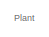
[diagram: root canvas - part 1/4, top left region]
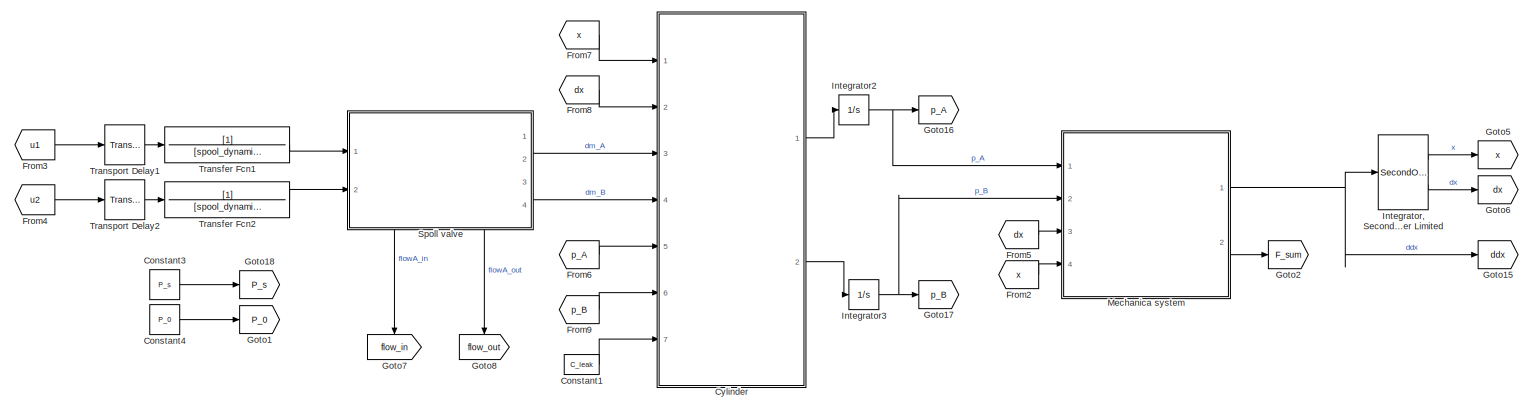
[diagram: root canvas - part 2/4, full width, top band]
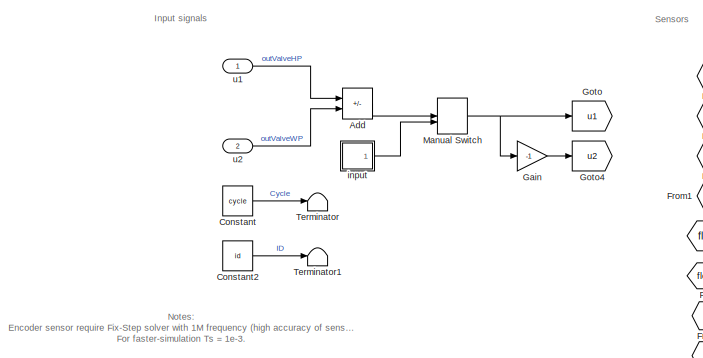
[diagram: root canvas - part 3/4, bottom left region]
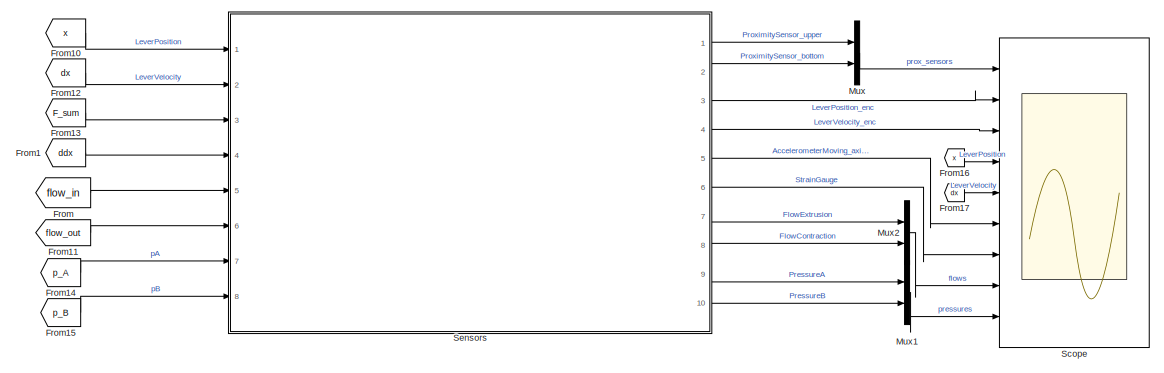
[diagram: root canvas - part 4/4, bottom right region]
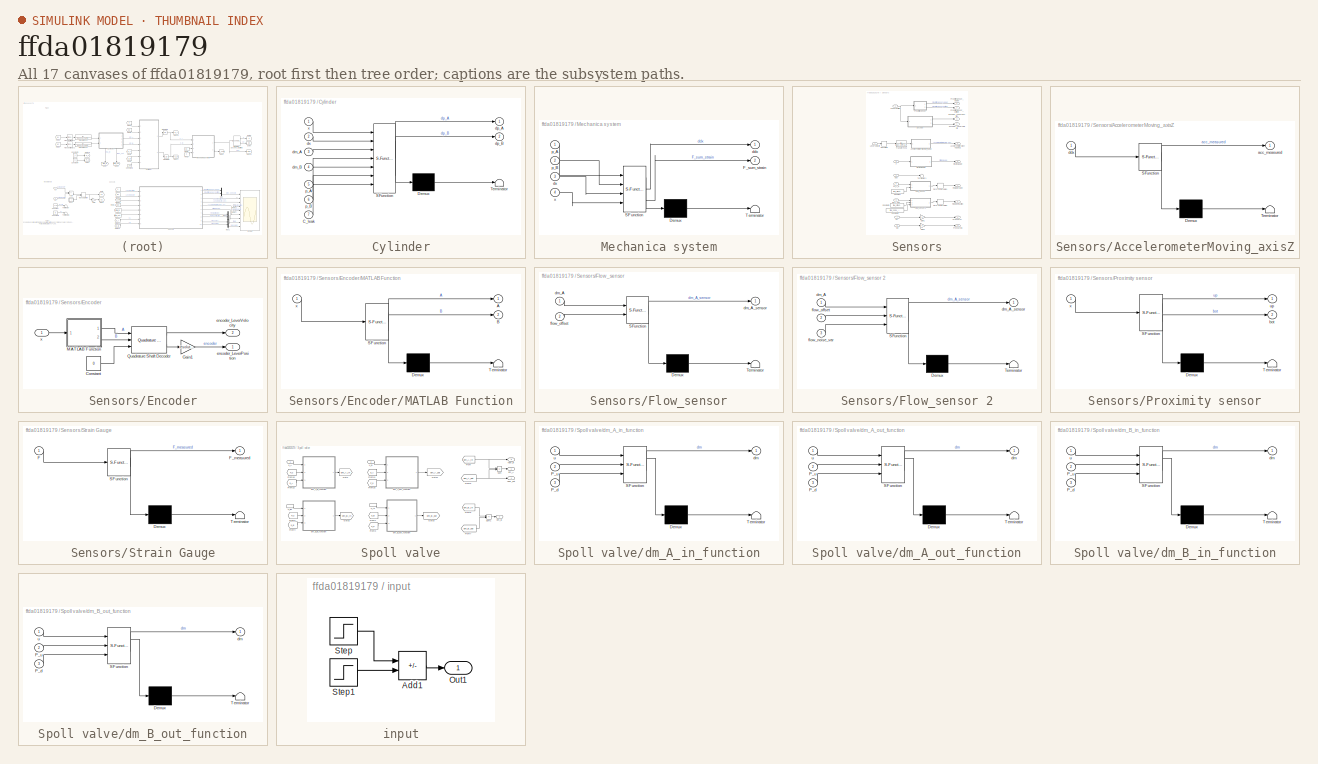
[diagram: thumbnail index - all 17 canvases of the model, root first then tree order]
MODEL slx_ffda01819179
KIND model
CONFIG AbsTol = auto
CONFIG EnableMultiTasking = off
CONFIG FixedStep = Ts
CONFIG MaxStep = auto
CONFIG MinStep = auto
CONFIG RelTol = 1e-3
CONFIG SampleTimeConstraint = Unconstrained
CONFIG SolverName = FixedStepAuto
CONFIG StartTime = 0.0
CONFIG StopTime = 10.0
BLOCK [Sum] Add
  IconShape = rectangular
  Inputs = -+
  Ports = [2, 1]
BLOCK [Constant] Constant
  OutDataTypeStr = double
  Value = cycle
BLOCK [Constant] Constant1
  Value = C_leak
BLOCK [Constant] Constant2
  OutDataTypeStr = double
  Value = id
BLOCK [Constant] Constant3
  Value = P_s
BLOCK [Constant] Constant4
  Value = P_0
BLOCK [SubSystem] Cylinder
  ErrorFcn = Stateflow.Translate.translate
  PermitHierarchicalResolution = ExplicitOnly
  Ports = [7, 2]
  RequestExecContextInheritance = off
  SFBlockType = MATLAB Function
  TreatAsAtomicUnit = on
BLOCK [Demux] Cylinder/ Demux 
  Outputs = 1
  Ports = [1, 1]
BLOCK [S-Function] Cylinder/ SFunction 
  EnableBusSupport = on
  FunctionName = sf_sfun
  Parameters = C_1,C_2,L,P_0,P_cr_ref,R,S_A,S_B,T,V_0A,V_0B,air_leak,gamma
  PortCounts = [7 3]
  Ports = [7, 3]
  SFcnIsStateOwnerBlock = off
  SFunctionDeploymentMode = off
  Tag = Stateflow S-Function 16
BLOCK [Terminator] Cylinder/ Terminator 
BLOCK [Inport] Cylinder/C_leak
  Port = 7
BLOCK [Inport] Cylinder/dm_A
  Port = 3
BLOCK [Inport] Cylinder/dm_B
  Port = 4
BLOCK [Outport] Cylinder/dp_A
BLOCK [Outport] Cylinder/dp_B
  Port = 2
BLOCK [Inport] Cylinder/dx
  Port = 2
BLOCK [Inport] Cylinder/p_A
  Port = 5
BLOCK [Inport] Cylinder/p_B
  Port = 6
BLOCK [Inport] Cylinder/x
BLOCK [From] From
  GotoTag = flow_in
  TagVisibility = global
BLOCK [From] From1
  GotoTag = ddx
  TagVisibility = global
BLOCK [From] From10
  GotoTag = x
  TagVisibility = global
BLOCK [From] From11
  GotoTag = flow_out
  TagVisibility = global
BLOCK [From] From12
  GotoTag = dx
  TagVisibility = global
BLOCK [From] From13
  GotoTag = F_sum
  TagVisibility = global
BLOCK [From] From14
  GotoTag = p_A
  TagVisibility = global
BLOCK [From] From15
  GotoTag = p_B
  TagVisibility = global
BLOCK [From] From16
  GotoTag = x
  TagVisibility = global
BLOCK [From] From17
  GotoTag = dx
  TagVisibility = global
BLOCK [From] From2
  GotoTag = x
  TagVisibility = global
BLOCK [From] From3
  GotoTag = u1
BLOCK [From] From4
  GotoTag = u2
BLOCK [From] From5
  GotoTag = dx
  TagVisibility = global
BLOCK [From] From6
  GotoTag = p_A
  TagVisibility = global
BLOCK [From] From7
  GotoTag = x
  TagVisibility = global
BLOCK [From] From8
  GotoTag = dx
  TagVisibility = global
BLOCK [From] From9
  GotoTag = p_B
  TagVisibility = global
BLOCK [Gain] Gain
  Gain = -1
BLOCK [Goto] Goto
  GotoTag = u1
BLOCK [Goto] Goto1
  GotoTag = P_0
  TagVisibility = global
BLOCK [Goto] Goto15
  GotoTag = ddx
  TagVisibility = global
BLOCK [Goto] Goto16
  GotoTag = p_A
  TagVisibility = global
BLOCK [Goto] Goto17
  GotoTag = p_B
  TagVisibility = global
BLOCK [Goto] Goto18
  GotoTag = P_s
  TagVisibility = global
BLOCK [Goto] Goto2
  GotoTag = F_sum
  TagVisibility = global
BLOCK [Goto] Goto4
  GotoTag = u2
BLOCK [Goto] Goto5
  GotoTag = x
  TagVisibility = global
BLOCK [Goto] Goto6
  GotoTag = dx
  TagVisibility = global
BLOCK [Goto] Goto7
  GotoTag = flow_in
  NameLocation = left
  TagVisibility = global
BLOCK [Goto] Goto8
  GotoTag = flow_out
  NameLocation = left
  TagVisibility = global
BLOCK [SecondOrderIntegrator] Integrator, Second-Order Limited
  ICX = x0
  LowerLimitX = gn
  Ports = [1, 2]
  UpperLimitX = gp
BLOCK [Integrator] Integrator2
  InitialCondition = p_A0
  Ports = [1, 1]
BLOCK [Integrator] Integrator3
  InitialCondition = p_B0
  Ports = [1, 1]
BLOCK [ManualSwitch] Manual Switch
  CurrentSetting = 0
BLOCK [SubSystem] Mechanica system
  ErrorFcn = Stateflow.Translate.translate
  PermitHierarchicalResolution = ExplicitOnly
  Ports = [4, 2]
  RequestExecContextInheritance = off
  SFBlockType = MATLAB Function
  TreatAsAtomicUnit = on
BLOCK [Demux] Mechanica system/ Demux 
  Outputs = 1
  Ports = [1, 1]
BLOCK [S-Function] Mechanica system/ SFunction 
  EnableBusSupport = on
  FunctionName = sf_sfun
  Parameters = B_hs,F_c,F_df,F_sf,K_hs,LargeDamper_bottom,LargeDamper_upper,M,M_L,P_0,S_0,S_A,S_B,SmallDamper_bottom,SmallDamper_upper,b_large_bot,b_large_up,b_small_bot,b_small_up,bot_damp_start,g,gn,gp,k_small_bot,k_small_up,up_damp_start
  PortCounts = [4 3]
  Ports = [4, 3]
  SFcnIsStateOwnerBlock = off
  SFunctionDeploymentMode = off
  Tag = Stateflow S-Function 15
BLOCK [Terminator] Mechanica system/ Terminator 
BLOCK [Outport] Mechanica system/F_sum_strain
  Port = 2
BLOCK [Outport] Mechanica system/ddx
BLOCK [Inport] Mechanica system/dx
  Port = 3
BLOCK [Inport] Mechanica system/p_A
BLOCK [Inport] Mechanica system/p_B
  Port = 2
BLOCK [Inport] Mechanica system/x
  Port = 4
BLOCK [Mux] Mux
  DisplayOption = bar
  Inputs = 2
  Ports = [2, 1]
BLOCK [Mux] Mux1
  DisplayOption = bar
  Inputs = 2
  Ports = [2, 1]
BLOCK [Mux] Mux2
  DisplayOption = bar
  Inputs = 2
  Ports = [2, 1]
BLOCK [Scope] Scope
  Floating = off
  NumInputPorts = 9
  Ports = [9]
  ScopeSpecificationString = Simulink.scopes.TimeScopeBlockCfg('CurrentConfiguration', extmgr.ConfigurationSet(extmgr.Configuration('Core','General UI',true),extmgr.Configuration('Core','Source UI',true),extmgr.Configuration('Sources','WiredSimulink',true,'DataLoggingVariableName','ScopeData1'),extmgr.Configuration('Visuals','Time Domain',true,'SerializedDisplays',{struct('MinYLimReal','-0.125','MaxYLimReal','1.125','YLabelRe...<+6979ch>
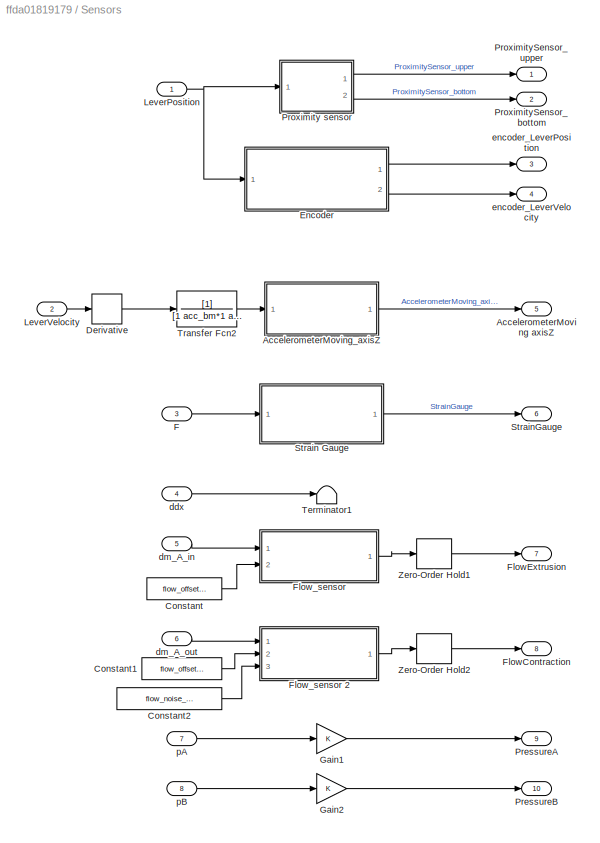
BLOCK [SubSystem] Sensors
  Ports = [8, 10]
  RequestExecContextInheritance = off
BLOCK [Outport] Sensors/AccelerometerMoving axisZ
  Port = 5
BLOCK [SubSystem] Sensors/AccelerometerMoving_axisZ
  ErrorFcn = Stateflow.Translate.translate
  PermitHierarchicalResolution = ExplicitOnly
  Ports = [1, 1]
  RequestExecContextInheritance = off
  SFBlockType = MATLAB Function
  TreatAsAtomicUnit = on
BLOCK [Demux] Sensors/AccelerometerMoving_axisZ/ Demux 
  Outputs = 1
  Ports = [1, 1]
BLOCK [S-Function] Sensors/AccelerometerMoving_axisZ/ SFunction 
  EnableBusSupport = on
  FunctionName = sf_sfun
  Parameters = acc_C,acc_enable,acc_noise_var
  PortCounts = [1 2]
  Ports = [1, 2]
  SFcnIsStateOwnerBlock = off
  SFunctionDeploymentMode = off
  Tag = Stateflow S-Function 1
BLOCK [Terminator] Sensors/AccelerometerMoving_axisZ/ Terminator 
BLOCK [Outport] Sensors/AccelerometerMoving_axisZ/acc_measured
BLOCK [Inport] Sensors/AccelerometerMoving_axisZ/ddx
BLOCK [Constant] Sensors/Constant
  Value = flow_offset_ex
BLOCK [Constant] Sensors/Constant1
  Value = flow_offset_con
BLOCK [Constant] Sensors/Constant2
  Value = flow_noise_var_con
BLOCK [Derivative] Sensors/Derivative
BLOCK [SubSystem] Sensors/Encoder
  Ports = [1, 2]
  RequestExecContextInheritance = off
BLOCK [Constant] Sensors/Encoder/Constant
  Value = 0
BLOCK [Gain] Sensors/Encoder/Gain1
  Gain = resolution*2
BLOCK [SubSystem] Sensors/Encoder/MATLAB Function
  ErrorFcn = Stateflow.Translate.translate
  PermitHierarchicalResolution = ExplicitOnly
  Ports = [1, 2]
  RequestExecContextInheritance = off
  SFBlockType = MATLAB Function
  TreatAsAtomicUnit = on
BLOCK [Demux] Sensors/Encoder/MATLAB Function/ Demux 
  Outputs = 1
  Ports = [1, 1]
BLOCK [S-Function] Sensors/Encoder/MATLAB Function/ SFunction 
  EnableBusSupport = on
  FunctionName = sf_sfun
  Parameters = counter_bits,resolution,threshold
  PortCounts = [1 3]
  Ports = [1, 3]
  SFcnIsStateOwnerBlock = off
  SFunctionDeploymentMode = off
  Tag = Stateflow S-Function 6
BLOCK [Terminator] Sensors/Encoder/MATLAB Function/ Terminator 
BLOCK [Outport] Sensors/Encoder/MATLAB Function/A
BLOCK [Outport] Sensors/Encoder/MATLAB Function/B
  Port = 2
BLOCK [Inport] Sensors/Encoder/MATLAB Function/x
BLOCK [Reference] Sensors/Encoder/Quadrature Shaft Decoder  REF=eeQuadratureDecoder/Quadrature Shaft
Decoder
  Ports = [3, 2]
  SourceBlock = eeQuadratureDecoder/Quadrature Shaft\nDecoder
  SourceProductBaseCode = PS
  SourceType = Quadrature Shaft Decoder
BLOCK [Outport] Sensors/Encoder/encoder_LeverPosition
BLOCK [Outport] Sensors/Encoder/encoder_LeverVelocity
  Port = 2
BLOCK [Inport] Sensors/Encoder/x
BLOCK [Inport] Sensors/F
  Port = 3
BLOCK [Outport] Sensors/FlowContraction
  Port = 8
BLOCK [Outport] Sensors/FlowExtrusion
  Port = 7
BLOCK [SubSystem] Sensors/Flow_sensor
  ErrorFcn = Stateflow.Translate.translate
  PermitHierarchicalResolution = ExplicitOnly
  Ports = [2, 1]
  RequestExecContextInheritance = off
  SFBlockType = MATLAB Function
  TreatAsAtomicUnit = on
BLOCK [SubSystem] Sensors/Flow_sensor 2
  ErrorFcn = Stateflow.Translate.translate
  PermitHierarchicalResolution = ExplicitOnly
  Ports = [3, 1]
  RequestExecContextInheritance = off
  SFBlockType = MATLAB Function
  TreatAsAtomicUnit = on
BLOCK [Demux] Sensors/Flow_sensor 2/ Demux 
  Outputs = 1
  Ports = [1, 1]
BLOCK [S-Function] Sensors/Flow_sensor 2/ SFunction 
  EnableBusSupport = on
  FunctionName = sf_sfun
  Parameters = flow_C,flow_C_ratio
  PortCounts = [3 2]
  Ports = [3, 2]
  SFcnIsStateOwnerBlock = off
  SFunctionDeploymentMode = off
  Tag = Stateflow S-Function 4
BLOCK [Terminator] Sensors/Flow_sensor 2/ Terminator 
BLOCK [Inport] Sensors/Flow_sensor 2/dm_A
BLOCK [Outport] Sensors/Flow_sensor 2/dm_A_sensor
BLOCK [Inport] Sensors/Flow_sensor 2/flow_noise_var
  Port = 3
BLOCK [Inport] Sensors/Flow_sensor 2/flow_offset
  Port = 2
BLOCK [Demux] Sensors/Flow_sensor/ Demux 
  Outputs = 1
  Ports = [1, 1]
BLOCK [S-Function] Sensors/Flow_sensor/ SFunction 
  EnableBusSupport = on
  FunctionName = sf_sfun
  Parameters = flow_C,flow_C_ratio,flow_noise_var
  PortCounts = [2 2]
  Ports = [2, 2]
  SFcnIsStateOwnerBlock = off
  SFunctionDeploymentMode = off
  Tag = Stateflow S-Function 3
BLOCK [Terminator] Sensors/Flow_sensor/ Terminator 
BLOCK [Inport] Sensors/Flow_sensor/dm_A
BLOCK [Outport] Sensors/Flow_sensor/dm_A_sensor
BLOCK [Inport] Sensors/Flow_sensor/flow_offset
  Port = 2
BLOCK [Gain] Sensors/Gain1
BLOCK [Gain] Sensors/Gain2
BLOCK [Inport] Sensors/LeverPosition
BLOCK [Inport] Sensors/LeverVelocity
  Port = 2
BLOCK [Outport] Sensors/PressureA
  Port = 9
BLOCK [Outport] Sensors/PressureB
  Port = 10
BLOCK [SubSystem] Sensors/Proximity sensor
  ErrorFcn = Stateflow.Translate.translate
  PermitHierarchicalResolution = ExplicitOnly
  Ports = [1, 2]
  RequestExecContextInheritance = off
  SFBlockType = MATLAB Function
  TreatAsAtomicUnit = on
BLOCK [Demux] Sensors/Proximity sensor/ Demux 
  Outputs = 1
  Ports = [1, 1]
BLOCK [S-Function] Sensors/Proximity sensor/ SFunction 
  EnableBusSupport = on
  FunctionName = sf_sfun
  Parameters = prox_bot_band,prox_up_band
  PortCounts = [1 3]
  Ports = [1, 3]
  SFcnIsStateOwnerBlock = off
  SFunctionDeploymentMode = off
  Tag = Stateflow S-Function 2
BLOCK [Terminator] Sensors/Proximity sensor/ Terminator 
BLOCK [Outport] Sensors/Proximity sensor/bot
  Port = 2
BLOCK [Outport] Sensors/Proximity sensor/up
BLOCK [Inport] Sensors/Proximity sensor/x
BLOCK [Outport] Sensors/ProximitySensor_bottom
  Port = 2
BLOCK [Outport] Sensors/ProximitySensor_upper
BLOCK [SubSystem] Sensors/Strain Gauge
  ErrorFcn = Stateflow.Translate.translate
  PermitHierarchicalResolution = ExplicitOnly
  Ports = [1, 1]
  RequestExecContextInheritance = off
  SFBlockType = MATLAB Function
  TreatAsAtomicUnit = on
BLOCK [Demux] Sensors/Strain Gauge/ Demux 
  Outputs = 1
  Ports = [1, 1]
BLOCK [S-Function] Sensors/Strain Gauge/ SFunction 
  EnableBusSupport = on
  FunctionName = sf_sfun
  Parameters = sg_C,sg_enable,sg_noise_var
  PortCounts = [1 2]
  Ports = [1, 2]
  SFcnIsStateOwnerBlock = off
  SFunctionDeploymentMode = off
  Tag = Stateflow S-Function 5
BLOCK [Terminator] Sensors/Strain Gauge/ Terminator 
BLOCK [Inport] Sensors/Strain Gauge/F
BLOCK [Outport] Sensors/Strain Gauge/F_measured
BLOCK [Outport] Sensors/StrainGauge
  Port = 6
BLOCK [Terminator] Sensors/Terminator1
BLOCK [TransferFcn] Sensors/Transfer Fcn2
  Denominator = [1 acc_bm*1 acc_km*1]
BLOCK [ZeroOrderHold] Sensors/Zero-Order Hold1
  SampleTime = Ts
BLOCK [ZeroOrderHold] Sensors/Zero-Order Hold2
  SampleTime = Ts
BLOCK [Inport] Sensors/ddx
  Port = 4
BLOCK [Inport] Sensors/dm_A_in
  Port = 5
BLOCK [Inport] Sensors/dm_A_out
  Port = 6
BLOCK [Outport] Sensors/encoder_LeverPosition
  Port = 3
BLOCK [Outport] Sensors/encoder_LeverVelocity
  Port = 4
BLOCK [Inport] Sensors/pA
  Port = 7
BLOCK [Inport] Sensors/pB
  Port = 8
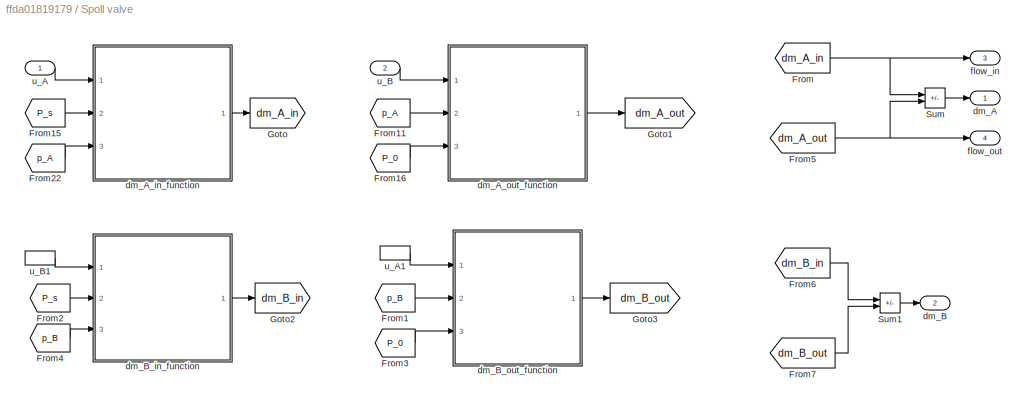
BLOCK [SubSystem] Spoll valve
  PortSchema = {"entries":[{"content":{"sides":[{"content":{"connectorIds":["In1","In2"]},"type":"ConnectorPlacement.EquallySpacedRectSide","uuid":"f49fadee-fa9e-4c00-be17-3013d1757a7f"},{"content":{"connectorIds":["Out1","Out2"],"side":"RIGHT"},"type":"ConnectorPlacement.EquallySpacedRectSide","uuid":"640b0073-0df7-45c7-9e72-cb244187d5a1"},{"content":{"connectorIds":[],"side":"TOP"},"type":"ConnectorPlacement.E...<+410ch>
  Ports = [2, 4]
  RequestExecContextInheritance = off
BLOCK [From] Spoll valve/From
  GotoTag = dm_A_in
BLOCK [From] Spoll valve/From1
  GotoTag = p_B
  TagVisibility = global
BLOCK [From] Spoll valve/From11
  GotoTag = p_A
  TagVisibility = global
BLOCK [From] Spoll valve/From15
  GotoTag = P_s
  TagVisibility = global
BLOCK [From] Spoll valve/From16
  GotoTag = P_0
  TagVisibility = global
BLOCK [From] Spoll valve/From2
  GotoTag = P_s
  TagVisibility = global
BLOCK [From] Spoll valve/From22
  GotoTag = p_A
  TagVisibility = global
BLOCK [From] Spoll valve/From3
  GotoTag = P_0
  TagVisibility = global
BLOCK [From] Spoll valve/From4
  GotoTag = p_B
  TagVisibility = global
BLOCK [From] Spoll valve/From5
  GotoTag = dm_A_out
BLOCK [From] Spoll valve/From6
  GotoTag = dm_B_in
BLOCK [From] Spoll valve/From7
  GotoTag = dm_B_out
BLOCK [Goto] Spoll valve/Goto
  GotoTag = dm_A_in
BLOCK [Goto] Spoll valve/Goto1
  GotoTag = dm_A_out
BLOCK [Goto] Spoll valve/Goto2
  GotoTag = dm_B_in
BLOCK [Goto] Spoll valve/Goto3
  GotoTag = dm_B_out
BLOCK [Sum] Spoll valve/Sum
  IconShape = rectangular
  Inputs = +-
  Ports = [2, 1]
BLOCK [Sum] Spoll valve/Sum1
  IconShape = rectangular
  Inputs = +-
  Ports = [2, 1]
BLOCK [Outport] Spoll valve/dm_A
BLOCK [SubSystem] Spoll valve/dm_A_in_function
  ErrorFcn = Stateflow.Translate.translate
  PermitHierarchicalResolution = ExplicitOnly
  Ports = [3, 1]
  RequestExecContextInheritance = off
  SFBlockType = MATLAB Function
  TreatAsAtomicUnit = on
BLOCK [Demux] Spoll valve/dm_A_in_function/ Demux 
  Outputs = 1
  Ports = [1, 1]
BLOCK [S-Function] Spoll valve/dm_A_in_function/ SFunction 
  EnableBusSupport = on
  FunctionName = sf_sfun
  Parameters = C_1,C_2,C_A_in,P_cr,T,gamma
  PortCounts = [3 2]
  Ports = [3, 2]
  SFcnIsStateOwnerBlock = off
  SFunctionDeploymentMode = off
  Tag = Stateflow S-Function 17
BLOCK [Terminator] Spoll valve/dm_A_in_function/ Terminator 
BLOCK [Inport] Spoll valve/dm_A_in_function/P_d
  Port = 3
BLOCK [Inport] Spoll valve/dm_A_in_function/P_u
  Port = 2
BLOCK [Outport] Spoll valve/dm_A_in_function/dm
BLOCK [Inport] Spoll valve/dm_A_in_function/u
BLOCK [SubSystem] Spoll valve/dm_A_out_function
  ErrorFcn = Stateflow.Translate.translate
  PermitHierarchicalResolution = ExplicitOnly
  Ports = [3, 1]
  RequestExecContextInheritance = off
  SFBlockType = MATLAB Function
  TreatAsAtomicUnit = on
BLOCK [Demux] Spoll valve/dm_A_out_function/ Demux 
  Outputs = 1
  Ports = [1, 1]
BLOCK [S-Function] Spoll valve/dm_A_out_function/ SFunction 
  EnableBusSupport = on
  FunctionName = sf_sfun
  Parameters = C_1,C_2,C_A_out,P_cr,T,gamma
  PortCounts = [3 2]
  Ports = [3, 2]
  SFcnIsStateOwnerBlock = off
  SFunctionDeploymentMode = off
  Tag = Stateflow S-Function 18
BLOCK [Terminator] Spoll valve/dm_A_out_function/ Terminator 
BLOCK [Inport] Spoll valve/dm_A_out_function/P_d
  Port = 3
BLOCK [Inport] Spoll valve/dm_A_out_function/P_u
  Port = 2
BLOCK [Outport] Spoll valve/dm_A_out_function/dm
BLOCK [Inport] Spoll valve/dm_A_out_function/u
BLOCK [Outport] Spoll valve/dm_B
  Port = 2
BLOCK [SubSystem] Spoll valve/dm_B_in_function
  ErrorFcn = Stateflow.Translate.translate
  PermitHierarchicalResolution = ExplicitOnly
  Ports = [3, 1]
  RequestExecContextInheritance = off
  SFBlockType = MATLAB Function
  TreatAsAtomicUnit = on
BLOCK [Demux] Spoll valve/dm_B_in_function/ Demux 
  Outputs = 1
  Ports = [1, 1]
BLOCK [S-Function] Spoll valve/dm_B_in_function/ SFunction 
  EnableBusSupport = on
  FunctionName = sf_sfun
  Parameters = C_1,C_2,C_B_in,P_cr,T,gamma
  PortCounts = [3 2]
  Ports = [3, 2]
  SFcnIsStateOwnerBlock = off
  SFunctionDeploymentMode = off
  Tag = Stateflow S-Function 19
BLOCK [Terminator] Spoll valve/dm_B_in_function/ Terminator 
BLOCK [Inport] Spoll valve/dm_B_in_function/P_d
  Port = 3
BLOCK [Inport] Spoll valve/dm_B_in_function/P_u
  Port = 2
BLOCK [Outport] Spoll valve/dm_B_in_function/dm
BLOCK [Inport] Spoll valve/dm_B_in_function/u
BLOCK [SubSystem] Spoll valve/dm_B_out_function
  ErrorFcn = Stateflow.Translate.translate
  PermitHierarchicalResolution = ExplicitOnly
  Ports = [3, 1]
  RequestExecContextInheritance = off
  SFBlockType = MATLAB Function
  TreatAsAtomicUnit = on
BLOCK [Demux] Spoll valve/dm_B_out_function/ Demux 
  Outputs = 1
  Ports = [1, 1]
BLOCK [S-Function] Spoll valve/dm_B_out_function/ SFunction 
  EnableBusSupport = on
  FunctionName = sf_sfun
  Parameters = C_1,C_2,C_B_out,P_cr,T,gamma
  PortCounts = [3 2]
  Ports = [3, 2]
  SFcnIsStateOwnerBlock = off
  SFunctionDeploymentMode = off
  Tag = Stateflow S-Function 20
BLOCK [Terminator] Spoll valve/dm_B_out_function/ Terminator 
BLOCK [Inport] Spoll valve/dm_B_out_function/P_d
  Port = 3
BLOCK [Inport] Spoll valve/dm_B_out_function/P_u
  Port = 2
BLOCK [Outport] Spoll valve/dm_B_out_function/dm
BLOCK [Inport] Spoll valve/dm_B_out_function/u
BLOCK [Outport] Spoll valve/flow_in
  Port = 3
BLOCK [Outport] Spoll valve/flow_out
  Port = 4
BLOCK [Inport] Spoll valve/u_A
BLOCK [InportShadow] Spoll valve/u_A1
BLOCK [Inport] Spoll valve/u_B
  Port = 2
BLOCK [InportShadow] Spoll valve/u_B1
  Port = 2
BLOCK [Terminator] Terminator
BLOCK [Terminator] Terminator1
BLOCK [TransferFcn] Transfer Fcn1
  Denominator = [spool_dynamic 1]
BLOCK [TransferFcn] Transfer Fcn2
  Denominator = [spool_dynamic 1]
BLOCK [TransportDelay] Transport Delay1
  DelayTime = spool_valve_time_delay
  Ports = [1, 1]
BLOCK [TransportDelay] Transport Delay2
  DelayTime = spool_valve_time_delay
  Ports = [1, 1]
BLOCK [SubSystem] input
  Ports = [0, 1]
  RequestExecContextInheritance = off
BLOCK [Sum] input/Add1
  IconShape = rectangular
  Inputs = +-
  Ports = [2, 1]
BLOCK [Outport] input/Out1
BLOCK [Step] input/Step
  Before = -1
  SampleTime = 0
BLOCK [Step] input/Step1
  After = 2
  SampleTime = 0
  Time = 6
BLOCK [Inport] u1
BLOCK [Inport] u2
  Port = 2
ANNOTATION (root): Notes: Encoder sensor require Fix-Step solver with 1M frequency (high accuracy of sensor). For faster-simulation Ts = 1e-3.
ANNOTATION (root): Input signals
ANNOTATION (root): Plant
ANNOTATION (root): Sensors
LINE Add:1 -> Manual Switch:1
LINE Constant1:1 -> Cylinder:7
LINE Constant2:1 -> Terminator1:1
LINE Constant3:1 -> Goto18:1
LINE Constant4:1 -> Goto1:1
LINE Constant:1 -> Terminator:1
LINE Cylinder:1 -> Integrator2:1
LINE Cylinder:2 -> Integrator3:1
LINE From10:1 -> Sensors:1
LINE From11:1 -> Sensors:6
LINE From12:1 -> Sensors:2
LINE From13:1 -> Sensors:3
LINE From14:1 -> Sensors:7
LINE From15:1 -> Sensors:8
LINE From16:1 -> Scope:4
LINE From17:1 -> Scope:5
LINE From1:1 -> Sensors:4
LINE From2:1 -> Mechanica system:4
LINE From3:1 -> Transport Delay1:1
LINE From4:1 -> Transport Delay2:1
LINE From5:1 -> Mechanica system:3
LINE From6:1 -> Cylinder:5
LINE From7:1 -> Cylinder:1
LINE From8:1 -> Cylinder:2
LINE From9:1 -> Cylinder:6
LINE From:1 -> Sensors:5
LINE Gain:1 -> Goto4:1
LINE Integrator, Second-Order Limited:1 -> Goto5:1
LINE Integrator, Second-Order Limited:2 -> Goto6:1
NET Integrator2:1 -> Goto16:1, Mechanica system:1
NET Integrator3:1 -> Goto17:1, Mechanica system:2
NET Manual Switch:1 -> Gain:1, Goto:1
NET Mechanica system:1 -> Goto15:1, Integrator, Second-Order Limited:1
LINE Mechanica system:2 -> Goto2:1
LINE Mux1:1 -> Scope:9
LINE Mux2:1 -> Scope:8
LINE Mux:1 -> Scope:1
LINE Sensors/AccelerometerMoving_axisZ:1 -> Sensors/AccelerometerMoving axisZ:1
LINE Sensors/Constant1:1 -> Sensors/Flow_sensor 2:2
LINE Sensors/Constant2:1 -> Sensors/Flow_sensor 2:3
LINE Sensors/Constant:1 -> Sensors/Flow_sensor:2
LINE Sensors/Derivative:1 -> Sensors/Transfer Fcn2:1
LINE Sensors/Encoder/Constant:1 -> Sensors/Encoder/Quadrature Shaft Decoder:3
LINE Sensors/Encoder/Gain1:1 -> Sensors/Encoder/encoder_LeverPosition:1
LINE Sensors/Encoder/MATLAB Function:1 -> Sensors/Encoder/Quadrature Shaft Decoder:1
LINE Sensors/Encoder/MATLAB Function:2 -> Sensors/Encoder/Quadrature Shaft Decoder:2
LINE Sensors/Encoder/Quadrature Shaft Decoder:1 -> Sensors/Encoder/encoder_LeverVelocity:1
LINE Sensors/Encoder/Quadrature Shaft Decoder:2 -> Sensors/Encoder/Gain1:1
LINE Sensors/Encoder/x:1 -> Sensors/Encoder/MATLAB Function:1
LINE Sensors/Encoder:1 -> Sensors/encoder_LeverPosition:1
LINE Sensors/Encoder:2 -> Sensors/encoder_LeverVelocity:1
LINE Sensors/F:1 -> Sensors/Strain Gauge:1
LINE Sensors/Flow_sensor 2:1 -> Sensors/Zero-Order Hold2:1
LINE Sensors/Flow_sensor:1 -> Sensors/Zero-Order Hold1:1
LINE Sensors/Gain1:1 -> Sensors/PressureA:1
LINE Sensors/Gain2:1 -> Sensors/PressureB:1
NET Sensors/LeverPosition:1 -> Sensors/Encoder:1, Sensors/Proximity sensor:1
LINE Sensors/LeverVelocity:1 -> Sensors/Derivative:1
LINE Sensors/Proximity sensor:1 -> Sensors/ProximitySensor_upper:1
LINE Sensors/Proximity sensor:2 -> Sensors/ProximitySensor_bottom:1
LINE Sensors/Strain Gauge:1 -> Sensors/StrainGauge:1
LINE Sensors/Transfer Fcn2:1 -> Sensors/AccelerometerMoving_axisZ:1
LINE Sensors/Zero-Order Hold1:1 -> Sensors/FlowExtrusion:1
LINE Sensors/Zero-Order Hold2:1 -> Sensors/FlowContraction:1
LINE Sensors/ddx:1 -> Sensors/Terminator1:1
LINE Sensors/dm_A_in:1 -> Sensors/Flow_sensor:1
LINE Sensors/dm_A_out:1 -> Sensors/Flow_sensor 2:1
LINE Sensors/pA:1 -> Sensors/Gain1:1
LINE Sensors/pB:1 -> Sensors/Gain2:1
LINE Sensors:1 -> Mux:1
LINE Sensors:10 -> Mux1:2
LINE Sensors:2 -> Mux:2
LINE Sensors:3 -> Scope:2
LINE Sensors:4 -> Scope:3
LINE Sensors:5 -> Scope:6
LINE Sensors:6 -> Scope:7
LINE Sensors:7 -> Mux2:1
LINE Sensors:8 -> Mux2:2
LINE Sensors:9 -> Mux1:1
LINE Spoll valve/From11:1 -> Spoll valve/dm_A_out_function:2
LINE Spoll valve/From15:1 -> Spoll valve/dm_A_in_function:2
LINE Spoll valve/From16:1 -> Spoll valve/dm_A_out_function:3
LINE Spoll valve/From1:1 -> Spoll valve/dm_B_out_function:2
LINE Spoll valve/From22:1 -> Spoll valve/dm_A_in_function:3
LINE Spoll valve/From2:1 -> Spoll valve/dm_B_in_function:2
LINE Spoll valve/From3:1 -> Spoll valve/dm_B_out_function:3
LINE Spoll valve/From4:1 -> Spoll valve/dm_B_in_function:3
NET Spoll valve/From5:1 -> Spoll valve/Sum:2, Spoll valve/flow_out:1
LINE Spoll valve/From6:1 -> Spoll valve/Sum1:1
LINE Spoll valve/From7:1 -> Spoll valve/Sum1:2
NET Spoll valve/From:1 -> Spoll valve/Sum:1, Spoll valve/flow_in:1
LINE Spoll valve/Sum1:1 -> Spoll valve/dm_B:1
LINE Spoll valve/Sum:1 -> Spoll valve/dm_A:1
LINE Spoll valve/dm_A_in_function:1 -> Spoll valve/Goto:1
LINE Spoll valve/dm_A_out_function:1 -> Spoll valve/Goto1:1
LINE Spoll valve/dm_B_in_function:1 -> Spoll valve/Goto2:1
LINE Spoll valve/dm_B_out_function:1 -> Spoll valve/Goto3:1
LINE Spoll valve/u_A1:1 -> Spoll valve/dm_B_out_function:1
LINE Spoll valve/u_A:1 -> Spoll valve/dm_A_in_function:1
LINE Spoll valve/u_B1:1 -> Spoll valve/dm_B_in_function:1
LINE Spoll valve/u_B:1 -> Spoll valve/dm_A_out_function:1
LINE Spoll valve:1 -> Cylinder:3
LINE Spoll valve:2 -> Cylinder:4
LINE Spoll valve:3 -> Goto7:1
LINE Spoll valve:4 -> Goto8:1
LINE Transfer Fcn1:1 -> Spoll valve:1
LINE Transfer Fcn2:1 -> Spoll valve:2
LINE Transport Delay1:1 -> Transfer Fcn1:1
LINE Transport Delay2:1 -> Transfer Fcn2:1
LINE input/Add1:1 -> input/Out1:1
LINE input/Step1:1 -> input/Add1:2
LINE input/Step:1 -> input/Add1:1
LINE input:1 -> Manual Switch:2
LINE u1:1 -> Add:1
LINE u2:1 -> Add:2
note: NET lines group one-source signal fan-out (src -> all destinations, sorted); 1:1 wires keep LINE
CHART Mechanica system states=1 transitions=1
  STATE_LABEL 'eML_blk_kernel()'
  STATE_LABEL 'SCRIPT:\nfunction [ddx, F_sum_strain] = fcn(p_A,p_B,dx,x,S_A,S_B,M,M_L,P_0,S_0,g, ...\n    up_damp_start,bot_damp_start,b_small_up,k_small_up,b_small_bot,k_small_bot,SmallDamper_bottom,SmallDamper_upper, ...\n    K_hs,B_hs,gp,gn,b_large_bot, b_large_up, LargeDamper_bottom, LargeDamper_upper, F_sf, F_df, F_c)\n\n\n\n% % Hard Stop\nif 1\nup_force = K_hs*(x-gp) + B_hs*dx*ge(dx,0);\nbot_force = K_hs*(x-gn) + B_...<+1343ch>'
CHART Cylinder states=1 transitions=1
  STATE_LABEL 'eML_blk_kernel()'
  STATE_LABEL 'SCRIPT:\nfunction [dp_A,dp_B]= fcn(x,dx,dm_A,dm_B,p_A,p_B,gamma,V_0A,V_0B,S_A,S_B,R,T,L,P_cr_ref,C_2,C_1,air_leak,P_0, C_leak)\n\nV_A = V_0A + S_A*x;\ndV_A = dx * S_A;\n\nV_B = V_0B + S_B*(L-x);\ndV_B = - dx * S_B;\n\n% Air leak on chamber B model\n\nif air_leak  \n    P_d = P_0;\n    P_u = p_B;\n    P_ratio = P_d/P_u;\n    if P_ratio <= P_cr_ref && P_ratio >= 0\n        dm_leak = C_leak*C_1*P_u/sqrt(T);\n    else...<+504ch>'
CHART Spoll valve/dm_A_in_function states=1 transitions=1
  STATE_LABEL 'eML_blk_kernel()'
  STATE_LABEL 'SCRIPT:\nfunction dm = fcn(u, P_u, P_d, C_A_in, C_1, C_2, P_cr, T, gamma)\nif u > 0    \n    P_ratio = P_d/P_u;\n    if P_ratio <= P_cr && P_ratio >= 0\n        dm = u*C_A_in*C_1*P_u/sqrt(T);\n    elseif P_ratio > P_cr && P_ratio <= 1\n        dm = u*C_A_in*C_2*P_u/sqrt(T)*P_ratio^(1/gamma)*sqrt(1-P_ratio^((gamma-1)/gamma));\n        %dm = u*C_A_in*P_u*sqrt(1-((P_ratio - P_cr)/(1-P_cr))^2);\n    else\n     ...<+140ch>'
CHART Spoll valve/dm_A_out_function states=1 transitions=1
  STATE_LABEL 'eML_blk_kernel()'
  STATE_LABEL 'SCRIPT:\nfunction dm = fcn(u, P_u, P_d, C_A_out, C_1, P_cr, C_2, T, gamma)\nif u > 0    \n    P_ratio = P_d/P_u;\n    if P_ratio <= P_cr && P_ratio >= 0\n        dm = u*C_A_out*C_1*P_u/sqrt(T);\n    elseif P_ratio > P_cr && P_ratio <= 1\n        dm = u*C_A_out*C_2*P_u/sqrt(T)*P_ratio^(1/gamma)*sqrt(1-P_ratio^((gamma-1)/gamma));\n        %dm = u*C_A_out*P_u*sqrt(1-((P_ratio - P_cr)/(1-P_cr))^2);\n\n    else\n...<+146ch>'
CHART Spoll valve/dm_B_in_function states=1 transitions=1
  STATE_LABEL 'eML_blk_kernel()'
  STATE_LABEL 'SCRIPT:\nfunction dm = fcn(u, P_u, P_d, P_cr, C_B_in, C_1, C_2, T, gamma)\nif u > 0    \n    P_ratio = P_d/P_u;\n    if P_ratio <= P_cr && P_ratio >= 0\n        dm = u*C_B_in*C_1*P_u/sqrt(T);\n    elseif P_ratio > P_cr && P_ratio <= 1\n        dm = u*C_B_in*C_2*P_u/sqrt(T)*P_ratio^(1/gamma)*sqrt(1-P_ratio^((gamma-1)/gamma));\n        %dm = u*C_B_in*P_u*sqrt(1-((P_ratio - P_cr)/(1-P_cr))^2);\n\n    else\n    ...<+141ch>'
CHART Spoll valve/dm_B_out_function states=1 transitions=1
  STATE_LABEL 'eML_blk_kernel()'
  STATE_LABEL 'SCRIPT:\nfunction dm = fcn(u, P_u, P_d, P_cr, C_B_out, C_1, C_2, T, gamma)\nif u > 0    \n    P_ratio = P_d/P_u;\n    if P_ratio <= P_cr && P_ratio >= 0\n        dm = u*C_B_out*C_1*P_u/sqrt(T);\n    elseif P_ratio > P_cr && P_ratio <= 1\n        dm = u*C_B_out*C_2*P_u/sqrt(T)*P_ratio^(1/gamma)*sqrt(1-P_ratio^((gamma-1)/gamma));\n        %dm = u*C_B_out*P_u*sqrt(1-((P_ratio - P_cr)/(1-P_cr))^2);\n\n    else\n...<+146ch>'
CHART Sensors/AccelerometerMoving_axisZ states=1 transitions=1
  STATE_LABEL 'eML_blk_kernel()'
  STATE_LABEL 'SCRIPT:\nfunction acc_measured = fcn(ddx, acc_noise_var, acc_enable, acc_C)\n\nZeroOffset = 2.5; % V\nSensetivity = 333; %mv/g\n\nacc = acc_enable * acc_C * ddx + 1;\n\nU_raw = acc*Sensetivity/1000 + ZeroOffset;\nU_raw = U_raw + acc_noise_var*(2*rand()-1);\n\nacc_measured =  acc_enable*((U_raw - ZeroOffset)*1000/Sensetivity);\nend'
CHART Sensors/Proximity sensor states=1 transitions=1
  STATE_LABEL 'eML_blk_kernel()'
  STATE_LABEL 'SCRIPT:\nfunction [up,bot]= fcn(x, prox_up_band, prox_bot_band)\nif x >= prox_up_band\n    up = 1; bot = 0;\nelseif x <= prox_bot_band\n    bot = 1; up = 0;\nelse\n    bot = 0;\n    up = 0;\nend\n'
CHART Sensors/Flow_sensor states=1 transitions=1
  STATE_LABEL 'eML_blk_kernel()'
  STATE_LABEL 'SCRIPT:\nfunction dm_A_sensor = fcn(dm_A, flow_C, flow_C_ratio, flow_noise_var, flow_offset)\ndm_A_sensor = flow_C*(flow_C_ratio*dm_A + flow_noise_var*(2*rand()-1)) + flow_offset;\nend'
CHART Sensors/Flow_sensor 2 states=1 transitions=1
  STATE_LABEL 'eML_blk_kernel()'
  STATE_LABEL 'SCRIPT:\nfunction dm_A_sensor = fcn(dm_A, flow_C, flow_C_ratio, flow_offset, flow_noise_var)\ndm_A_sensor = flow_C*(flow_C_ratio*dm_A + flow_noise_var*(2*rand()-1)) + flow_offset;'
CHART Sensors/Strain Gauge states=1 transitions=1
  STATE_LABEL 'eML_blk_kernel()'
  STATE_LABEL 'SCRIPT:\nfunction F_measured = fcn(F,sg_enable, sg_noise_var, sg_C)\nU = sg_enable*(sg_C*F + sg_noise_var*(2*rand()-1));\nF_measured = U*1/sg_C;\nend\n'
CHART Sensors/Encoder/MATLAB Function states=1 transitions=1
  STATE_LABEL 'eML_blk_kernel()'
  STATE_LABEL 'SCRIPT:\nfunction [A, B]= fcn(x, resolution, counter_bits, threshold)\nperiod = 4*resolution;\na = mod(x, period);\nb = mod(x-resolution, period);\nif 0 < a && a < period/2\n    A = 1;\nelseif period/2 < a && a < period\n    A = 0;\nelse\n    A = 0;\nend\n\nif 0 < b && b < period/2\n    B = 1;\nelseif period/2 < b && b < period\n    B = 0;\nelse \n    B = 0;\nend'
CHART  states=0 transitions=0
CHART  states=0 transitions=0
CHART  states=0 transitions=0
CHART  states=0 transitions=0
CHART  states=0 transitions=0
CHART  states=0 transitions=0
CHART  states=0 transitions=0
CHART  states=0 transitions=0
CHART  states=0 transitions=0
CHART  states=0 transitions=0
CHART  states=0 transitions=0
CHART  states=0 transitions=0
